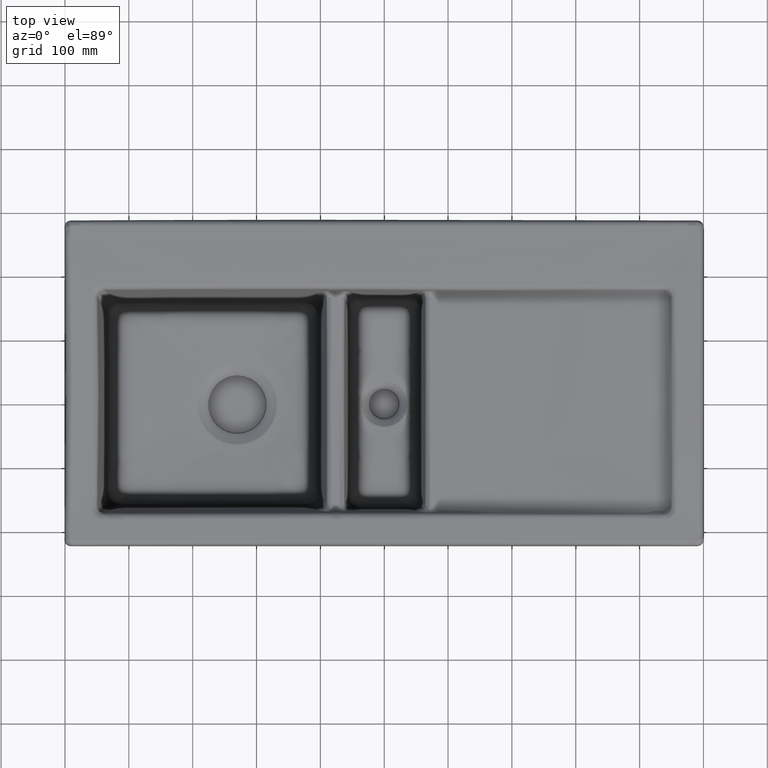
[diagram: clean part render]
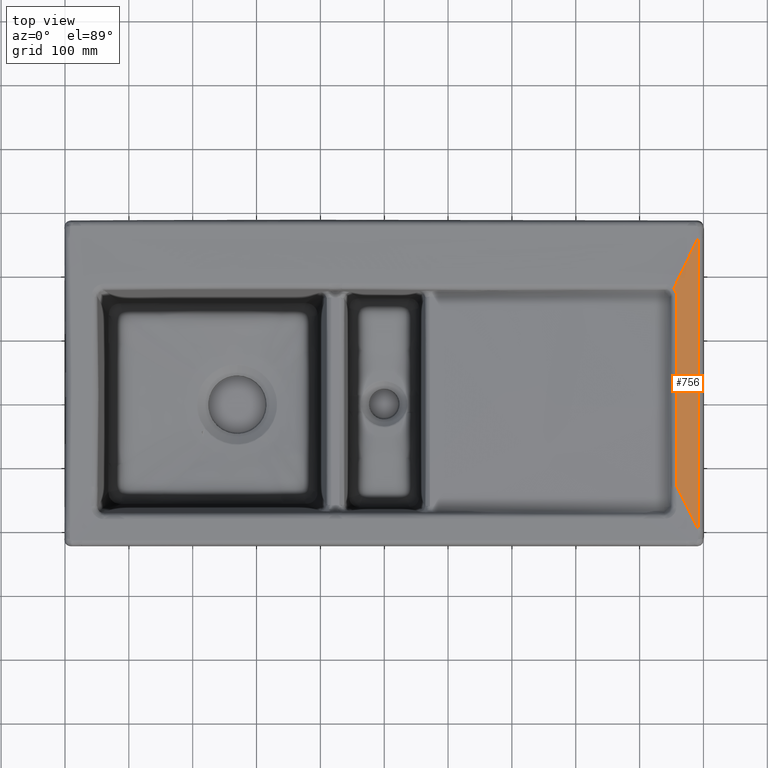
[diagram: same view with one face highlighted and labeled with its STEP entity id]
A machine part, top view. The second image highlights one B-rep face of the part: STEP entity #756.
In plain terms, the highlighted face is a freeform B-spline surface patch.
Its self-contained STEP definition (entity closure, byte-faithful):
#756=ADVANCED_FACE('',(#1248),#927,.F.);
#927=B_SPLINE_SURFACE_WITH_KNOTS('',3,1,((#32222,#32223),(#32224,#32225),
(#32226,#32227),(#32228,#32229),(#32230,#32231),(#32232,#32233),(#32234,
#32235),(#32236,#32237),(#32238,#32239),(#32240,#32241),(#32242,#32243),
(#32244,#32245),(#32246,#32247),(#32248,#32249),(#32250,#32251),(#32252,
#32253),(#32254,#32255),(#32256,#32257),(#32258,#32259)),.UNSPECIFIED.,
 .F.,.F.,.F.,(4,1,1,1,1,1,1,1,1,1,1,1,1,1,1,1,4),(2,2),(0.,0.0157398137839386,
0.0848244646236567,0.119366790043516,0.153909115463375,0.188451440883234,
0.222993766303093,0.257536091722952,0.292078417142811,0.36116306798253,
0.499332369661966,0.637501671341402,0.775670973020838,0.844755623860556,
0.913840274700274,0.982924925539993,1.),(0.,1.),.UNSPECIFIED.);
#1248=FACE_OUTER_BOUND('',#1607,.T.);
#1607=EDGE_LOOP('',(#3150,#3151,#3152,#3153,#3154));
#3150=ORIENTED_EDGE('',*,*,#4610,.F.);
#3151=ORIENTED_EDGE('',*,*,#4611,.F.);
#3152=ORIENTED_EDGE('',*,*,#4612,.F.);
#3153=ORIENTED_EDGE('',*,*,#4557,.T.);
#3154=ORIENTED_EDGE('',*,*,#4613,.F.);
#3776=VERTEX_POINT('',#30762);
#3777=VERTEX_POINT('',#30769);
#3801=VERTEX_POINT('',#32196);
#3802=VERTEX_POINT('',#32197);
#3803=VERTEX_POINT('',#32210);
#4557=EDGE_CURVE('',#3776,#3777,#5244,.T.);
#4610=EDGE_CURVE('',#3801,#3802,#5287,.T.);
#4611=EDGE_CURVE('',#3803,#3801,#5288,.T.);
#4612=EDGE_CURVE('',#3776,#3803,#5289,.T.);
#4613=EDGE_CURVE('',#3802,#3777,#5290,.T.);
#5244=B_SPLINE_CURVE_WITH_KNOTS('',3,(#30770,#30771,#30772,#30773,#30774,
#30775,#30776,#30777,#30778,#30779,#30780,#30781,#30782,#30783),
 .UNSPECIFIED.,.F.,.F.,(4,2,2,2,2,2,4),(0.,0.125,0.25,0.5,0.75,0.875,1.),
 .UNSPECIFIED.);
#5287=B_SPLINE_CURVE_WITH_KNOTS('',3,(#32188,#32189,#32190,#32191,#32192,
#32193,#32194,#32195),.UNSPECIFIED.,.F.,.F.,(4,1,1,1,1,4),(0.,0.27639090385146,
0.55278180770292,0.829172711554379,0.967368163480109,1.),.UNSPECIFIED.);
#5288=B_SPLINE_CURVE_WITH_KNOTS('',3,(#32198,#32199,#32200,#32201,#32202,
#32203,#32204,#32205,#32206,#32207,#32208,#32209),.UNSPECIFIED.,.F.,.F.,
(4,2,2,2,2,4),(0.,0.25,0.5,0.75,0.875,1.),.UNSPECIFIED.);
#5289=B_SPLINE_CURVE_WITH_KNOTS('',3,(#32211,#32212,#32213,#32214,#32215,
#32216),.UNSPECIFIED.,.F.,.F.,(4,1,1,4),(0.,0.497195350486655,0.869745666963315,
1.),.UNSPECIFIED.);
#5290=B_SPLINE_CURVE_WITH_KNOTS('',3,(#32217,#32218,#32219,#32220,#32221),
 .UNSPECIFIED.,.F.,.F.,(4,1,4),(0.,0.497339925763757,1.),.UNSPECIFIED.);
#30762=CARTESIAN_POINT('',(491.34445018397,-197.892974184157,-0.165962111592248));
#30769=CARTESIAN_POINT('',(491.341756769768,257.276938301869,-0.169125923088087));
#30770=CARTESIAN_POINT('',(491.341908122476,-197.887375061552,-0.172303343971629));
#30771=CARTESIAN_POINT('',(491.341899506274,-178.921206929696,-0.139412441702778));
#30772=CARTESIAN_POINT('',(491.341890890049,-159.956552582762,0.145384526597512));
#30773=CARTESIAN_POINT('',(491.34187365758,-122.030788758394,0.868697333181853));
#30774=CARTESIAN_POINT('',(491.341865041346,-103.066488249325,1.1522755412399));
#30775=CARTESIAN_POINT('',(491.341839192645,-46.1709899523271,1.77720492456949));
#30776=CARTESIAN_POINT('',(491.341821960182,-8.2376712587849,1.9226463615083));
#30777=CARTESIAN_POINT('',(491.341787495238,67.6269759059533,1.63761111927966));
#30778=CARTESIAN_POINT('',(491.341770262772,105.558314875725,1.21962556668692));
#30779=CARTESIAN_POINT('',(491.341744414006,162.447115557739,0.147411601921529));
#30780=CARTESIAN_POINT('',(491.341735798387,181.411565607327,-0.158070864977412));
#30781=CARTESIAN_POINT('',(491.341718566143,219.344075510091,-0.205150360941306));
#30782=CARTESIAN_POINT('',(491.341709949857,238.310523512826,-0.171633035956945));
#30783=CARTESIAN_POINT('',(491.341701333642,257.276822995878,-0.169127047046914));
#32188=CARTESIAN_POINT('',(457.78168324112,165.832133062999,-0.567171628068569));
#32189=CARTESIAN_POINT('',(457.781683947691,167.09292393871,-0.586844875609958));
#32190=CARTESIAN_POINT('',(457.594702357982,169.615375016884,-0.62805447277461));
#32191=CARTESIAN_POINT('',(456.670361533661,173.300759869755,-0.696210484959625));
#32192=CARTESIAN_POINT('',(455.273847920218,176.14804757033,-0.758435688080905));
#32193=CARTESIAN_POINT('',(454.07216994824,177.800941724213,-0.800604029429684));
#32194=CARTESIAN_POINT('',(453.569489036794,178.396269295214,-0.816852978788617));
#32195=CARTESIAN_POINT('',(453.472002397005,178.508729005656,-0.819956271174051));
#32196=CARTESIAN_POINT('',(457.78168324112,165.832133062999,-0.567171628068571));
#32197=CARTESIAN_POINT('',(453.471848801554,178.508595555739,-0.819968260596883));
#32198=CARTESIAN_POINT('',(457.793124125482,-130.573468457907,0.0314420518235355));
#32199=CARTESIAN_POINT('',(457.804702800382,-105.852780783614,0.478858785979161));
#32200=CARTESIAN_POINT('',(457.783473770199,-81.1570876773651,0.759790431299027));
#32201=CARTESIAN_POINT('',(457.792407662439,-31.7470769426426,1.13156758790864));
#32202=CARTESIAN_POINT('',(457.798136842526,-7.03922665414087,1.19885282382996));
#32203=CARTESIAN_POINT('',(457.79711616444,42.3722479841077,1.0910575313061));
#32204=CARTESIAN_POINT('',(457.792054487583,67.0765397987905,0.916193949084145));
#32205=CARTESIAN_POINT('',(457.78941950221,104.130778201107,0.483750080914031));
#32206=CARTESIAN_POINT('',(457.790717927616,116.487132695047,0.311596758015724));
#32207=CARTESIAN_POINT('',(457.785824440417,141.196595555336,-0.113377766521479));
#32208=CARTESIAN_POINT('',(457.781676353123,153.541769158054,-0.375394088963763));
#32209=CARTESIAN_POINT('',(457.78168324112,165.832133062999,-0.567171628068569));
#32210=CARTESIAN_POINT('',(457.791920480021,-130.571698539755,0.0250169258138958));
#32211=CARTESIAN_POINT('',(491.343718045814,-197.892396535593,-0.159293651796824));
#32212=CARTESIAN_POINT('',(485.782975490677,-186.734943620924,-0.240942505468939));
#32213=CARTESIAN_POINT('',(476.055576784416,-167.217227781506,-0.302201530426205));
#32214=CARTESIAN_POINT('',(464.871495846403,-144.776725416503,-0.107939442930642));
#32215=CARTESIAN_POINT('',(459.248083350014,-133.493527259763,-0.00673545404998759));
#32216=CARTESIAN_POINT('',(457.791305992506,-130.570549867374,0.0184172006461763));
#32217=CARTESIAN_POINT('',(453.471695241912,178.508462229439,-0.819974979742187));
#32218=CARTESIAN_POINT('',(459.74979527731,191.565986469161,-0.829550461268176));
#32219=CARTESIAN_POINT('',(472.373153487598,217.822706232017,-0.555591264656972));
#32220=CARTESIAN_POINT('',(484.99651169775,244.07896024071,-0.297774791068653));
#32221=CARTESIAN_POINT('',(491.341769872798,257.276965555898,-0.16912565742632));
#32222=CARTESIAN_POINT('',(491.57276044308,260.008296327453,-0.16413707465173));
#32223=CARTESIAN_POINT('',(453.041702379409,260.008296327453,-0.934758235925139));
#32224=CARTESIAN_POINT('',(491.572760443077,257.591402182611,-0.164468708234641));
#32225=CARTESIAN_POINT('',(453.041702379407,257.591402182611,-0.93508986950805));
#32226=CARTESIAN_POINT('',(491.572760443064,244.566360818787,-0.166203321042454));
#32227=CARTESIAN_POINT('',(453.041702379394,244.566360818787,-0.936824482315862));
#32228=CARTESIAN_POINT('',(491.572760443046,226.237264295744,-0.166829822386307));
#32229=CARTESIAN_POINT('',(453.041702379376,226.237264295744,-0.937450983659715));
#32230=CARTESIAN_POINT('',(491.572760443038,205.020818796165,-0.186963262224637));
#32231=CARTESIAN_POINT('',(453.041702379367,205.020818796165,-0.957584423498046));
#32232=CARTESIAN_POINT('',(491.572760442928,189.108646415843,-0.162548693591891));
#32233=CARTESIAN_POINT('',(453.041702379258,189.108646415843,-0.933169854865299));
#32234=CARTESIAN_POINT('',(491.572760442569,173.197146862428,-0.014950101526272));
#32235=CARTESIAN_POINT('',(453.041702378899,173.197146862428,-0.785571262799681));
#32236=CARTESIAN_POINT('',(491.572760442288,157.286909367168,0.244067713933547));
#32237=CARTESIAN_POINT('',(453.041702378618,157.286909367168,-0.526553447339862));
#32238=CARTESIAN_POINT('',(491.572760442288,141.377646873107,0.552694670246061));
#32239=CARTESIAN_POINT('',(453.041702378617,141.377646873107,-0.217926491027348));
#32240=CARTESIAN_POINT('',(491.572760442361,120.164848013546,0.934653556905546));
#32241=CARTESIAN_POINT('',(453.04170237869,120.164848013546,0.164032395632137));
#32242=CARTESIAN_POINT('',(491.572760442327,83.0397479595823,1.44950356510982));
#32243=CARTESIAN_POINT('',(453.041702378657,83.0397479595823,0.678882403836412));
#32244=CARTESIAN_POINT('',(491.572760442345,30.0002851799724,1.87205437460166));
#32245=CARTESIAN_POINT('',(453.041702378674,30.0002851799724,1.10143321332825));
#32246=CARTESIAN_POINT('',(491.57276044234,-33.6491884007893,1.84835771019586));
#32247=CARTESIAN_POINT('',(453.04170237867,-33.6491884007893,1.07773654892245));
#32248=CARTESIAN_POINT('',(491.572760442341,-86.6882946847078,1.38377929297846));
#32249=CARTESIAN_POINT('',(453.04170237867,-86.6882946847078,0.613158131705056));
#32250=CARTESIAN_POINT('',(491.57276044234,-129.116557395504,0.768561131226378));
#32251=CARTESIAN_POINT('',(453.04170237867,-129.116557395504,-0.00206003004703026));
#32252=CARTESIAN_POINT('',(491.572760442345,-160.93417178035,0.0953709374740842));
#32253=CARTESIAN_POINT('',(453.041702378675,-160.93417178035,-0.675250223799325));
#32254=CARTESIAN_POINT('',(491.572760442322,-184.77148131031,-0.142684732412608));
#32255=CARTESIAN_POINT('',(453.041702378652,-184.77148131031,-0.913305893686017));
#32256=CARTESIAN_POINT('',(491.572760442302,-198.001452102744,-0.168829020769254));
#32257=CARTESIAN_POINT('',(453.041702378631,-198.001452102744,-0.939450182042662));
#32258=CARTESIAN_POINT('',(491.572760442297,-200.623368785939,-0.171334779560321));
#32259=CARTESIAN_POINT('',(453.041702378627,-200.623368785939,-0.94195594083373));